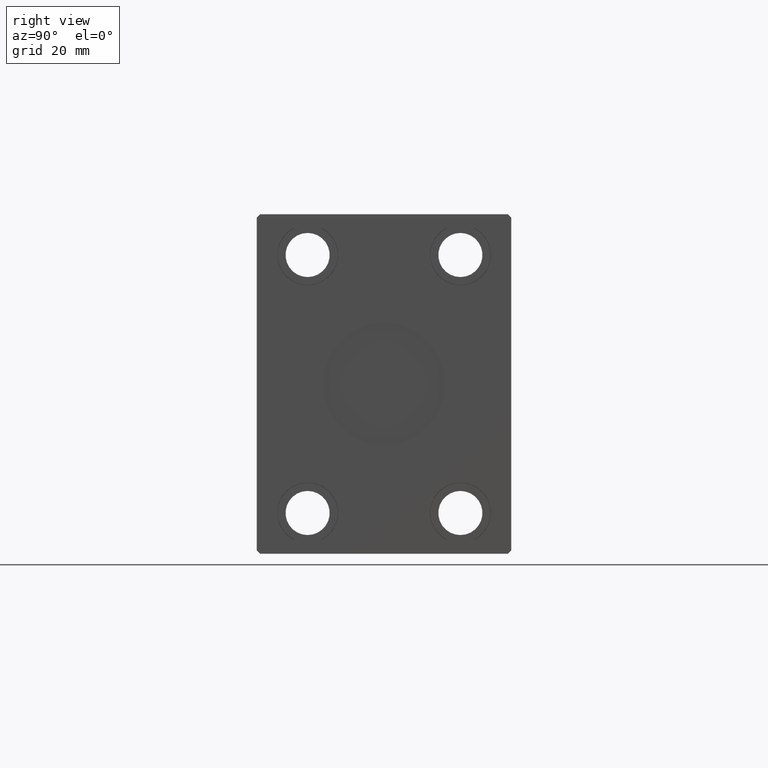
[diagram: clean part render]
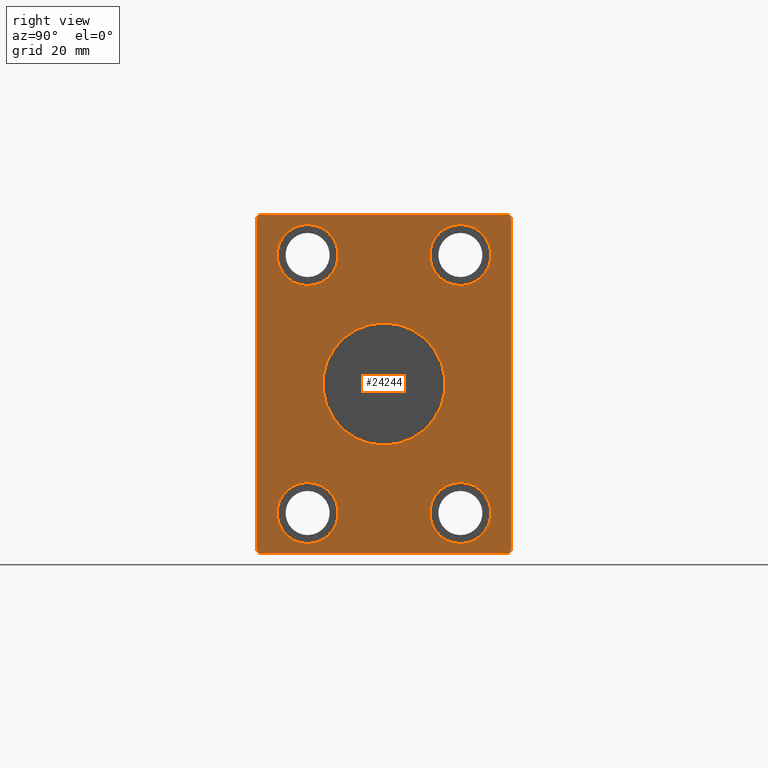
[diagram: same view with one face highlighted and labeled with its STEP entity id]
A machine part, right view. The second image highlights one B-rep face of the part: STEP entity #24244.
In plain terms, the highlighted planar face has unit normal (1, 0, 0).
Its self-contained STEP definition (entity closure, byte-faithful):
#593 = CARTESIAN_POINT ( 'NONE',  ( 162.0000000000000000, -36.50000000000000711, -50.00000000000000000 ) ) ;
#598 = EDGE_CURVE ( 'NONE', #8200, #41858, #37880, .T. ) ;
#822 = DIRECTION ( 'NONE',  ( 0.000000000000000000, 0.000000000000000000, -1.000000000000000000 ) ) ;
#841 = EDGE_CURVE ( 'NONE', #21952, #28053, #13746, .T. ) ;
#1448 = VECTOR ( 'NONE', #15164, 1000.000000000000114 ) ;
#1668 = ORIENTED_EDGE ( 'NONE', *, *, #6543, .T. ) ;
#1709 = CARTESIAN_POINT ( 'NONE',  ( 162.0000000000000000, 22.50000000000000000, 47.00000000000000000 ) ) ;
#2192 = CARTESIAN_POINT ( 'NONE',  ( 162.0000000000000000, 36.50000000000000711, -50.00000000000000000 ) ) ;
#2689 = ORIENTED_EDGE ( 'NONE', *, *, #25875, .F. ) ;
#2721 = DIRECTION ( 'NONE',  ( 0.000000000000000000, 0.7071067811865500152, -0.7071067811865451302 ) ) ;
#2801 = AXIS2_PLACEMENT_3D ( 'NONE', #6077, #10337, #3596 ) ;
#3239 = EDGE_CURVE ( 'NONE', #8689, #25387, #19302, .T. ) ;
#3291 = CIRCLE ( 'NONE', #13328, 9.000000000000001776 ) ;
#3596 = DIRECTION ( 'NONE',  ( 0.000000000000000000, 0.000000000000000000, -1.000000000000000000 ) ) ;
#4090 = CARTESIAN_POINT ( 'NONE',  ( 162.0000000000000000, -37.50000000000001421, -49.00000000000000000 ) ) ;
#4195 = CARTESIAN_POINT ( 'NONE',  ( 162.0000000000000000, 0.000000000000000000, 0.000000000000000000 ) ) ;
#4523 = DIRECTION ( 'NONE',  ( -1.000000000000000000, -0.000000000000000000, -0.000000000000000000 ) ) ;
#4638 = FACE_BOUND ( 'NONE', #24201, .T. ) ;
#4773 = LINE ( 'NONE', #32205, #12881 ) ;
#4811 = LINE ( 'NONE', #14923, #19710 ) ;
#5129 = VERTEX_POINT ( 'NONE', #6091 ) ;
#5566 = CIRCLE ( 'NONE', #15697, 9.000000000000001776 ) ;
#6077 = CARTESIAN_POINT ( 'NONE',  ( 162.0000000000000000, -22.50000000000000000, -38.00000000000000000 ) ) ;
#6091 = CARTESIAN_POINT ( 'NONE',  ( 162.0000000000000000, 37.50000000000000711, -49.00000000000000000 ) ) ;
#6203 = CARTESIAN_POINT ( 'NONE',  ( 162.0000000000000000, 22.50000000000000000, 38.00000000000000000 ) ) ;
#6384 = CARTESIAN_POINT ( 'NONE',  ( 162.0000000000000000, 22.50000000000000000, -47.00000000000000000 ) ) ;
#6543 = EDGE_CURVE ( 'NONE', #10833, #43630, #24165, .T. ) ;
#6783 = CARTESIAN_POINT ( 'NONE',  ( 162.0000000000000000, -37.50000000000001421, 48.99999999999998579 ) ) ;
#6828 = ORIENTED_EDGE ( 'NONE', *, *, #841, .T. ) ;
#7048 = EDGE_LOOP ( 'NONE', ( #11962, #15396 ) ) ;
#7611 = CARTESIAN_POINT ( 'NONE',  ( 162.0000000000000000, -22.50000000000000000, -47.00000000000000000 ) ) ;
#8017 = PLANE ( 'NONE',  #22607 ) ;
#8200 = VERTEX_POINT ( 'NONE', #33341 ) ;
#8407 = DIRECTION ( 'NONE',  ( 0.000000000000000000, 1.000000000000000000, 0.000000000000000000 ) ) ;
#8454 = FACE_OUTER_BOUND ( 'NONE', #37573, .T. ) ;
#8683 = FACE_BOUND ( 'NONE', #18343, .T. ) ;
#8689 = VERTEX_POINT ( 'NONE', #42037 ) ;
#8837 = EDGE_CURVE ( 'NONE', #12629, #39450, #3291, .T. ) ;
#9770 = CARTESIAN_POINT ( 'NONE',  ( 162.0000000000000000, 36.50000000000000711, -50.00000000000000000 ) ) ;
#9870 = VECTOR ( 'NONE', #15233, 1000.000000000000114 ) ;
#10226 = CARTESIAN_POINT ( 'NONE',  ( 162.0000000000000000, 22.50000000000000000, 38.00000000000000000 ) ) ;
#10337 = DIRECTION ( 'NONE',  ( 1.000000000000000000, -0.000000000000000000, -0.000000000000000000 ) ) ;
#10354 = DIRECTION ( 'NONE',  ( -1.000000000000000000, -0.000000000000000000, -0.000000000000000000 ) ) ;
#10634 = ORIENTED_EDGE ( 'NONE', *, *, #14799, .T. ) ;
#10833 = VERTEX_POINT ( 'NONE', #33310 ) ;
#10928 = DIRECTION ( 'NONE',  ( 0.000000000000000000, -0.7071067811865474617, 0.7071067811865474617 ) ) ;
#11541 = CARTESIAN_POINT ( 'NONE',  ( 162.0000000000000000, -37.50000000000001421, 48.99999999999998579 ) ) ;
#11550 = DIRECTION ( 'NONE',  ( 0.000000000000000000, 0.000000000000000000, -1.000000000000000000 ) ) ;
#11962 = ORIENTED_EDGE ( 'NONE', *, *, #19930, .T. ) ;
#12573 = CIRCLE ( 'NONE', #13909, 9.000000000000001776 ) ;
#12629 = VERTEX_POINT ( 'NONE', #23017 ) ;
#12881 = VECTOR ( 'NONE', #2721, 1000.000000000000114 ) ;
#13289 = ORIENTED_EDGE ( 'NONE', *, *, #39451, .T. ) ;
#13328 = AXIS2_PLACEMENT_3D ( 'NONE', #37940, #30748, #30315 ) ;
#13746 = LINE ( 'NONE', #6783, #14190 ) ;
#13854 = CARTESIAN_POINT ( 'NONE',  ( 162.0000000000000000, 22.50000000000000000, -28.99999999999999645 ) ) ;
#13909 = AXIS2_PLACEMENT_3D ( 'NONE', #10226, #17399, #37864 ) ;
#14063 = CARTESIAN_POINT ( 'NONE',  ( 162.0000000000000000, 37.50000000000000711, 49.00000000000000000 ) ) ;
#14089 = CARTESIAN_POINT ( 'NONE',  ( 162.0000000000000000, 37.50000000000000711, -49.00000000000000000 ) ) ;
#14190 = VECTOR ( 'NONE', #40961, 1000.000000000000000 ) ;
#14273 = LINE ( 'NONE', #38780, #1448 ) ;
#14629 = CARTESIAN_POINT ( 'NONE',  ( 162.0000000000000000, 22.50000000000000000, -38.00000000000000000 ) ) ;
#14773 = VERTEX_POINT ( 'NONE', #9770 ) ;
#14799 = EDGE_CURVE ( 'NONE', #21888, #35929, #30959, .T. ) ;
#14837 = EDGE_CURVE ( 'NONE', #43630, #25323, #42967, .T. ) ;
#14923 = CARTESIAN_POINT ( 'NONE',  ( 162.0000000000000000, -36.50000000000000711, -50.00000000000000000 ) ) ;
#15047 = CARTESIAN_POINT ( 'NONE',  ( 162.0000000000000000, 0.000000000000000000, 0.000000000000000000 ) ) ;
#15164 = DIRECTION ( 'NONE',  ( 0.000000000000000000, -0.7071067811865474617, -0.7071067811865474617 ) ) ;
#15233 = DIRECTION ( 'NONE',  ( 0.000000000000000000, 0.7071067811865474617, 0.7071067811865474617 ) ) ;
#15396 = ORIENTED_EDGE ( 'NONE', *, *, #8837, .T. ) ;
#15697 = AXIS2_PLACEMENT_3D ( 'NONE', #6203, #19890, #31584 ) ;
#15853 = ORIENTED_EDGE ( 'NONE', *, *, #27703, .T. ) ;
#16093 = EDGE_LOOP ( 'NONE', ( #2689, #32556 ) ) ;
#17303 = AXIS2_PLACEMENT_3D ( 'NONE', #14629, #4523, #21363 ) ;
#17399 = DIRECTION ( 'NONE',  ( 1.000000000000000000, -0.000000000000000000, -0.000000000000000000 ) ) ;
#17543 = VERTEX_POINT ( 'NONE', #38941 ) ;
#17972 = DIRECTION ( 'NONE',  ( 0.000000000000000000, 0.000000000000000000, -1.000000000000000000 ) ) ;
#18343 = EDGE_LOOP ( 'NONE', ( #10634, #23396 ) ) ;
#18479 = AXIS2_PLACEMENT_3D ( 'NONE', #28615, #42355, #11550 ) ;
#18543 = EDGE_LOOP ( 'NONE', ( #36648, #26903 ) ) ;
#18556 = FACE_BOUND ( 'NONE', #18543, .T. ) ;
#18739 = ORIENTED_EDGE ( 'NONE', *, *, #42540, .F. ) ;
#18789 = EDGE_CURVE ( 'NONE', #25323, #21952, #14273, .T. ) ;
#19302 = CIRCLE ( 'NONE', #2801, 9.000000000000001776 ) ;
#19328 = EDGE_CURVE ( 'NONE', #35929, #21888, #38071, .T. ) ;
#19553 = DIRECTION ( 'NONE',  ( 0.000000000000000000, 0.000000000000000000, -1.000000000000000000 ) ) ;
#19710 = VECTOR ( 'NONE', #8407, 1000.000000000000000 ) ;
#19890 = DIRECTION ( 'NONE',  ( 1.000000000000000000, -0.000000000000000000, -0.000000000000000000 ) ) ;
#19930 = EDGE_CURVE ( 'NONE', #39450, #12629, #20810, .T. ) ;
#20810 = CIRCLE ( 'NONE', #40257, 9.000000000000001776 ) ;
#21363 = DIRECTION ( 'NONE',  ( 0.000000000000000000, 0.000000000000000000, 1.000000000000000000 ) ) ;
#21569 = DIRECTION ( 'NONE',  ( 1.000000000000000000, 0.000000000000000000, 0.000000000000000000 ) ) ;
#21888 = VERTEX_POINT ( 'NONE', #6384 ) ;
#21952 = VERTEX_POINT ( 'NONE', #11541 ) ;
#22197 = LINE ( 'NONE', #2192, #9870 ) ;
#22276 = DIRECTION ( 'NONE',  ( 1.000000000000000000, -0.000000000000000000, -0.000000000000000000 ) ) ;
#22607 = AXIS2_PLACEMENT_3D ( 'NONE', #4195, #35893, #822 ) ;
#23017 = CARTESIAN_POINT ( 'NONE',  ( 162.0000000000000000, -22.50000000000000000, 47.00000000000000000 ) ) ;
#23396 = ORIENTED_EDGE ( 'NONE', *, *, #19328, .T. ) ;
#24134 = VERTEX_POINT ( 'NONE', #593 ) ;
#24165 = LINE ( 'NONE', #14063, #28340 ) ;
#24201 = EDGE_LOOP ( 'NONE', ( #18739, #30749 ) ) ;
#24244 = ADVANCED_FACE ( 'NONE', ( #18556, #32296, #8683, #8454, #4638, #28687 ), #8017, .T. ) ;
#24422 = DIRECTION ( 'NONE',  ( 0.000000000000000000, 0.000000000000000000, 1.000000000000000000 ) ) ;
#25163 = EDGE_CURVE ( 'NONE', #24134, #14773, #4811, .T. ) ;
#25185 = CARTESIAN_POINT ( 'NONE',  ( 162.0000000000000000, 36.50000000000000711, 50.00000000000000000 ) ) ;
#25323 = VERTEX_POINT ( 'NONE', #34821 ) ;
#25387 = VERTEX_POINT ( 'NONE', #7611 ) ;
#25754 = ORIENTED_EDGE ( 'NONE', *, *, #34910, .T. ) ;
#25875 = EDGE_CURVE ( 'NONE', #17543, #27796, #12573, .T. ) ;
#26774 = DIRECTION ( 'NONE',  ( 0.000000000000000000, 0.000000000000000000, 1.000000000000000000 ) ) ;
#26903 = ORIENTED_EDGE ( 'NONE', *, *, #31900, .F. ) ;
#27105 = CARTESIAN_POINT ( 'NONE',  ( 162.0000000000000000, -22.50000000000000000, 38.00000000000000000 ) ) ;
#27703 = EDGE_CURVE ( 'NONE', #5129, #10833, #31185, .T. ) ;
#27796 = VERTEX_POINT ( 'NONE', #1709 ) ;
#28053 = VERTEX_POINT ( 'NONE', #4090 ) ;
#28340 = VECTOR ( 'NONE', #10928, 1000.000000000000114 ) ;
#28615 = CARTESIAN_POINT ( 'NONE',  ( 162.0000000000000000, 0.000000000000000000, 0.000000000000000000 ) ) ;
#28687 = FACE_BOUND ( 'NONE', #16093, .T. ) ;
#30315 = DIRECTION ( 'NONE',  ( 0.000000000000000000, 0.000000000000000000, 1.000000000000000000 ) ) ;
#30748 = DIRECTION ( 'NONE',  ( -1.000000000000000000, -0.000000000000000000, -0.000000000000000000 ) ) ;
#30749 = ORIENTED_EDGE ( 'NONE', *, *, #3239, .F. ) ;
#30959 = CIRCLE ( 'NONE', #17303, 9.000000000000001776 ) ;
#31185 = LINE ( 'NONE', #14089, #42350 ) ;
#31189 = CARTESIAN_POINT ( 'NONE',  ( 162.0000000000000000, 36.50000000000000711, 50.00000000000000000 ) ) ;
#31584 = DIRECTION ( 'NONE',  ( 0.000000000000000000, 0.000000000000000000, -1.000000000000000000 ) ) ;
#31900 = EDGE_CURVE ( 'NONE', #41858, #8200, #41985, .T. ) ;
#32109 = ORIENTED_EDGE ( 'NONE', *, *, #14837, .T. ) ;
#32169 = DIRECTION ( 'NONE',  ( 0.000000000000000000, -1.000000000000000000, -1.901066822988281457E-16 ) ) ;
#32205 = CARTESIAN_POINT ( 'NONE',  ( 162.0000000000000000, -37.50000000000001421, -49.00000000000000000 ) ) ;
#32296 = FACE_BOUND ( 'NONE', #7048, .T. ) ;
#32556 = ORIENTED_EDGE ( 'NONE', *, *, #43972, .F. ) ;
#32648 = AXIS2_PLACEMENT_3D ( 'NONE', #15047, #21569, #17972 ) ;
#32770 = ORIENTED_EDGE ( 'NONE', *, *, #25163, .T. ) ;
#33112 = VECTOR ( 'NONE', #32169, 1000.000000000000000 ) ;
#33310 = CARTESIAN_POINT ( 'NONE',  ( 162.0000000000000000, 37.50000000000000711, 49.00000000000000000 ) ) ;
#33341 = CARTESIAN_POINT ( 'NONE',  ( 162.0000000000000000, 0.000000000000000000, -18.00000000000000000 ) ) ;
#33970 = CARTESIAN_POINT ( 'NONE',  ( 162.0000000000000000, 22.50000000000000000, -38.00000000000000000 ) ) ;
#34821 = CARTESIAN_POINT ( 'NONE',  ( 162.0000000000000000, -36.50000000000001421, 49.99999999999998579 ) ) ;
#34910 = EDGE_CURVE ( 'NONE', #14773, #5129, #22197, .T. ) ;
#35056 = AXIS2_PLACEMENT_3D ( 'NONE', #39592, #22276, #19553 ) ;
#35580 = CARTESIAN_POINT ( 'NONE',  ( 162.0000000000000000, -22.50000000000000000, 28.99999999999999645 ) ) ;
#35893 = DIRECTION ( 'NONE',  ( 1.000000000000000000, 0.000000000000000000, 0.000000000000000000 ) ) ;
#35925 = AXIS2_PLACEMENT_3D ( 'NONE', #33970, #10354, #26774 ) ;
#35929 = VERTEX_POINT ( 'NONE', #13854 ) ;
#36501 = CIRCLE ( 'NONE', #35056, 9.000000000000001776 ) ;
#36648 = ORIENTED_EDGE ( 'NONE', *, *, #598, .F. ) ;
#37022 = DIRECTION ( 'NONE',  ( -1.000000000000000000, -0.000000000000000000, -0.000000000000000000 ) ) ;
#37573 = EDGE_LOOP ( 'NONE', ( #1668, #32109, #40300, #6828, #13289, #32770, #25754, #15853 ) ) ;
#37864 = DIRECTION ( 'NONE',  ( 0.000000000000000000, 0.000000000000000000, -1.000000000000000000 ) ) ;
#37880 = CIRCLE ( 'NONE', #18479, 18.00000000000000000 ) ;
#37940 = CARTESIAN_POINT ( 'NONE',  ( 162.0000000000000000, -22.50000000000000000, 38.00000000000000000 ) ) ;
#38071 = CIRCLE ( 'NONE', #35925, 9.000000000000001776 ) ;
#38780 = CARTESIAN_POINT ( 'NONE',  ( 162.0000000000000000, -36.50000000000001421, 49.99999999999998579 ) ) ;
#38941 = CARTESIAN_POINT ( 'NONE',  ( 162.0000000000000000, 22.50000000000000000, 28.99999999999999645 ) ) ;
#39450 = VERTEX_POINT ( 'NONE', #35580 ) ;
#39451 = EDGE_CURVE ( 'NONE', #28053, #24134, #4773, .T. ) ;
#39592 = CARTESIAN_POINT ( 'NONE',  ( 162.0000000000000000, -22.50000000000000000, -38.00000000000000000 ) ) ;
#40174 = DIRECTION ( 'NONE',  ( 0.000000000000000000, 0.000000000000000000, 1.000000000000000000 ) ) ;
#40257 = AXIS2_PLACEMENT_3D ( 'NONE', #27105, #37022, #40174 ) ;
#40300 = ORIENTED_EDGE ( 'NONE', *, *, #18789, .T. ) ;
#40961 = DIRECTION ( 'NONE',  ( 0.000000000000000000, 0.000000000000000000, -1.000000000000000000 ) ) ;
#41858 = VERTEX_POINT ( 'NONE', #44022 ) ;
#41985 = CIRCLE ( 'NONE', #32648, 18.00000000000000000 ) ;
#42037 = CARTESIAN_POINT ( 'NONE',  ( 162.0000000000000000, -22.50000000000000000, -28.99999999999999645 ) ) ;
#42350 = VECTOR ( 'NONE', #24422, 1000.000000000000000 ) ;
#42355 = DIRECTION ( 'NONE',  ( 1.000000000000000000, 0.000000000000000000, 0.000000000000000000 ) ) ;
#42540 = EDGE_CURVE ( 'NONE', #25387, #8689, #36501, .T. ) ;
#42967 = LINE ( 'NONE', #25185, #33112 ) ;
#43630 = VERTEX_POINT ( 'NONE', #31189 ) ;
#43972 = EDGE_CURVE ( 'NONE', #27796, #17543, #5566, .T. ) ;
#44022 = CARTESIAN_POINT ( 'NONE',  ( 162.0000000000000000, 2.204364238465235428E-15, 18.00000000000000000 ) ) ;